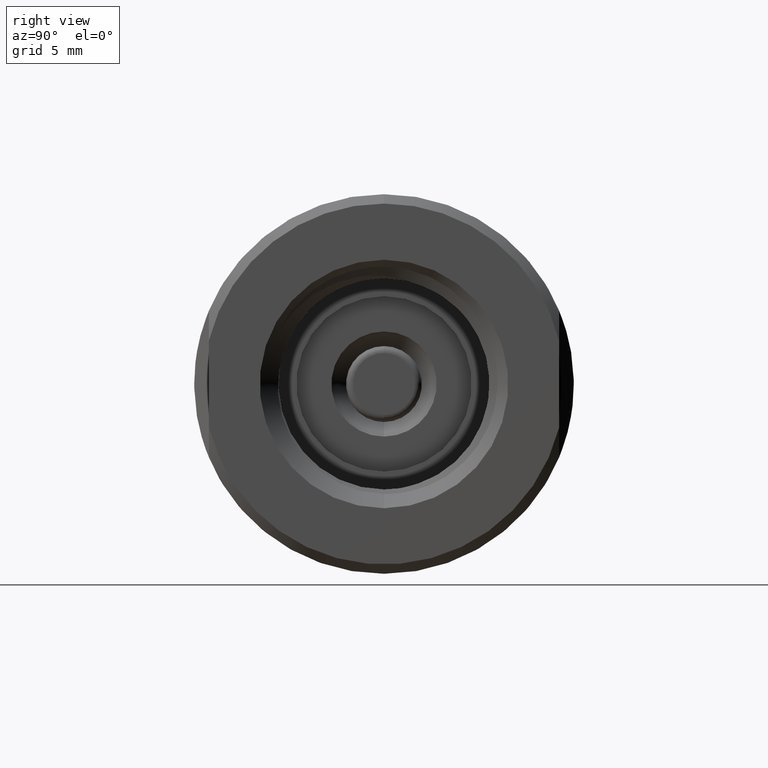
[diagram: clean part render]
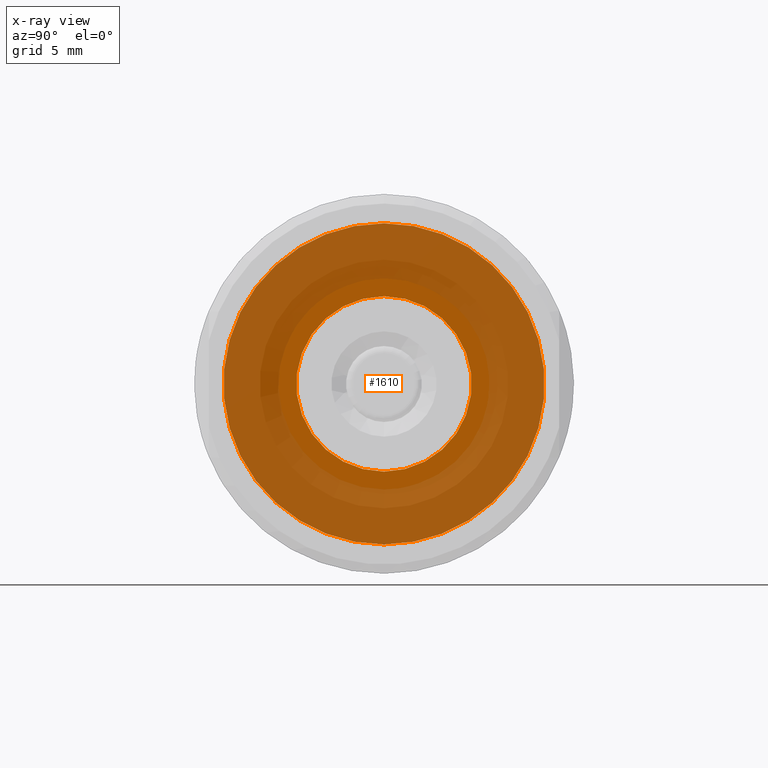
[diagram: x-ray — body ghosted, one internal face saturated and labeled with its STEP entity id]
A machine part, right view, then the same camera in x-ray: the body is ghosted and one INTERNAL B-rep face — a face not visible from any outside direction — is saturated and labeled: STEP entity #1610.
In plain terms, the highlighted planar face has unit normal (-1, 0, -0).
Its self-contained STEP definition (entity closure, byte-faithful):
#77 = VERTEX_POINT ( 'NONE', #5834 ) ;
#764 = VERTEX_POINT ( 'NONE', #9441 ) ;
#1127 = CARTESIAN_POINT ( 'NONE',  ( 0.2500000000000000000, 0.0000000000000000000, 0.0000000000000000000 ) ) ;
#1610 = ADVANCED_FACE ( 'NONE', ( #3543, #5212 ), #8456, .T. ) ;
#1615 = AXIS2_PLACEMENT_3D ( 'NONE', #9359, #1812, #3578 ) ;
#1643 = CARTESIAN_POINT ( 'NONE',  ( 0.2500000000000000000, 0.0000000000000000000, 0.1875000000000000833 ) ) ;
#1775 = DIRECTION ( 'NONE',  ( -0.0000000000000000000, 0.0000000000000000000, 1.000000000000000000 ) ) ;
#1795 = ORIENTED_EDGE ( 'NONE', *, *, #3606, .F. ) ;
#1812 = DIRECTION ( 'NONE',  ( -1.000000000000000000, -0.0000000000000000000, -0.0000000000000000000 ) ) ;
#2233 = CARTESIAN_POINT ( 'NONE',  ( 0.2500000000000000000, 0.0000000000000000000, 0.0000000000000000000 ) ) ;
#2384 = EDGE_CURVE ( 'NONE', #764, #5357, #9414, .T. ) ;
#2672 = AXIS2_PLACEMENT_3D ( 'NONE', #2233, #8973, #3944 ) ;
#3543 = FACE_OUTER_BOUND ( 'NONE', #10310, .T. ) ;
#3578 = DIRECTION ( 'NONE',  ( 0.0000000000000000000, 0.0000000000000000000, 1.000000000000000000 ) ) ;
#3606 = EDGE_CURVE ( 'NONE', #5357, #764, #9717, .T. ) ;
#3862 = VERTEX_POINT ( 'NONE', #6612 ) ;
#3943 = EDGE_CURVE ( 'NONE', #3862, #77, #8835, .T. ) ;
#3944 = DIRECTION ( 'NONE',  ( 0.0000000000000000000, 0.0000000000000000000, 1.000000000000000000 ) ) ;
#4216 = CIRCLE ( 'NONE', #2672, 0.3432499999999999996 ) ;
#4523 = CARTESIAN_POINT ( 'NONE',  ( 0.2500000000000000000, 0.0000000000000000000, 0.0000000000000000000 ) ) ;
#4569 = AXIS2_PLACEMENT_3D ( 'NONE', #1127, #7594, #1775 ) ;
#4750 = AXIS2_PLACEMENT_3D ( 'NONE', #4523, #6209, #7777 ) ;
#5212 = FACE_BOUND ( 'NONE', #9749, .T. ) ;
#5357 = VERTEX_POINT ( 'NONE', #1643 ) ;
#5834 = CARTESIAN_POINT ( 'NONE',  ( 0.2500000000000000000, 4.203600138073290128E-17, -0.3432499999999999996 ) ) ;
#6209 = DIRECTION ( 'NONE',  ( -1.000000000000000000, -0.0000000000000000000, -0.0000000000000000000 ) ) ;
#6612 = CARTESIAN_POINT ( 'NONE',  ( 0.2500000000000000000, 0.0000000000000000000, 0.3432499999999999996 ) ) ;
#7466 = ORIENTED_EDGE ( 'NONE', *, *, #2384, .F. ) ;
#7479 = DIRECTION ( 'NONE',  ( 0.0000000000000000000, 0.0000000000000000000, 1.000000000000000000 ) ) ;
#7540 = ORIENTED_EDGE ( 'NONE', *, *, #9790, .T. ) ;
#7594 = DIRECTION ( 'NONE',  ( -1.000000000000000000, 0.0000000000000000000, -0.0000000000000000000 ) ) ;
#7777 = DIRECTION ( 'NONE',  ( 0.0000000000000000000, 0.0000000000000000000, 1.000000000000000000 ) ) ;
#7796 = AXIS2_PLACEMENT_3D ( 'NONE', #8287, #10691, #7479 ) ;
#7867 = ORIENTED_EDGE ( 'NONE', *, *, #3943, .T. ) ;
#8287 = CARTESIAN_POINT ( 'NONE',  ( 0.2500000000000000000, 0.0000000000000000000, 0.0000000000000000000 ) ) ;
#8456 = PLANE ( 'NONE',  #4569 ) ;
#8835 = CIRCLE ( 'NONE', #7796, 0.3432499999999999996 ) ;
#8973 = DIRECTION ( 'NONE',  ( -1.000000000000000000, -0.0000000000000000000, -0.0000000000000000000 ) ) ;
#9359 = CARTESIAN_POINT ( 'NONE',  ( 0.2500000000000000000, 0.0000000000000000000, 0.0000000000000000000 ) ) ;
#9414 = CIRCLE ( 'NONE', #4750, 0.1875000000000000833 ) ;
#9441 = CARTESIAN_POINT ( 'NONE',  ( 0.2500000000000000000, 2.296212748401288342E-17, -0.1875000000000000833 ) ) ;
#9717 = CIRCLE ( 'NONE', #1615, 0.1875000000000000833 ) ;
#9749 = EDGE_LOOP ( 'NONE', ( #1795, #7466 ) ) ;
#9790 = EDGE_CURVE ( 'NONE', #77, #3862, #4216, .T. ) ;
#10310 = EDGE_LOOP ( 'NONE', ( #7867, #7540 ) ) ;
#10691 = DIRECTION ( 'NONE',  ( -1.000000000000000000, -0.0000000000000000000, -0.0000000000000000000 ) ) ;